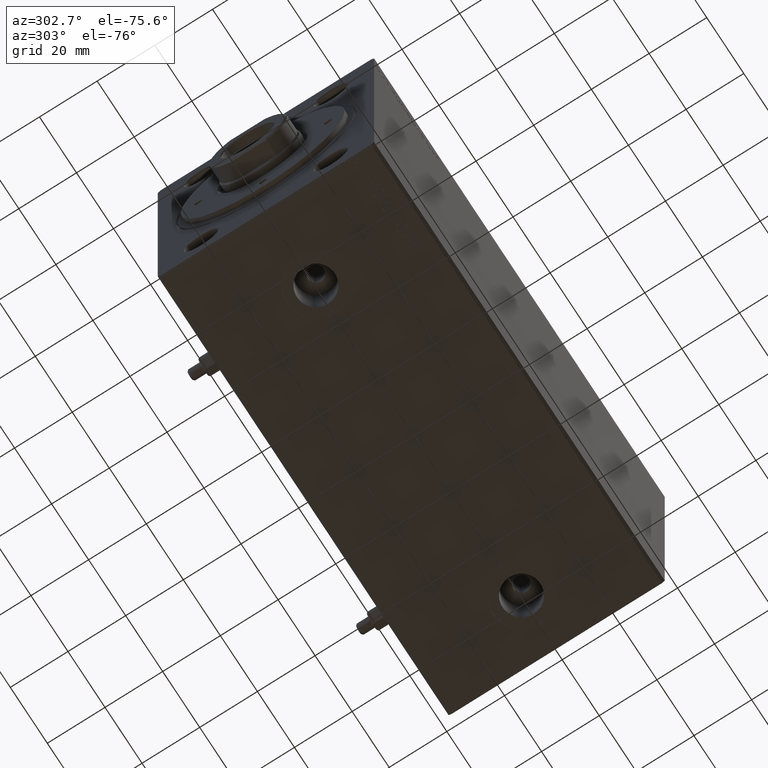
[diagram: clean part render]
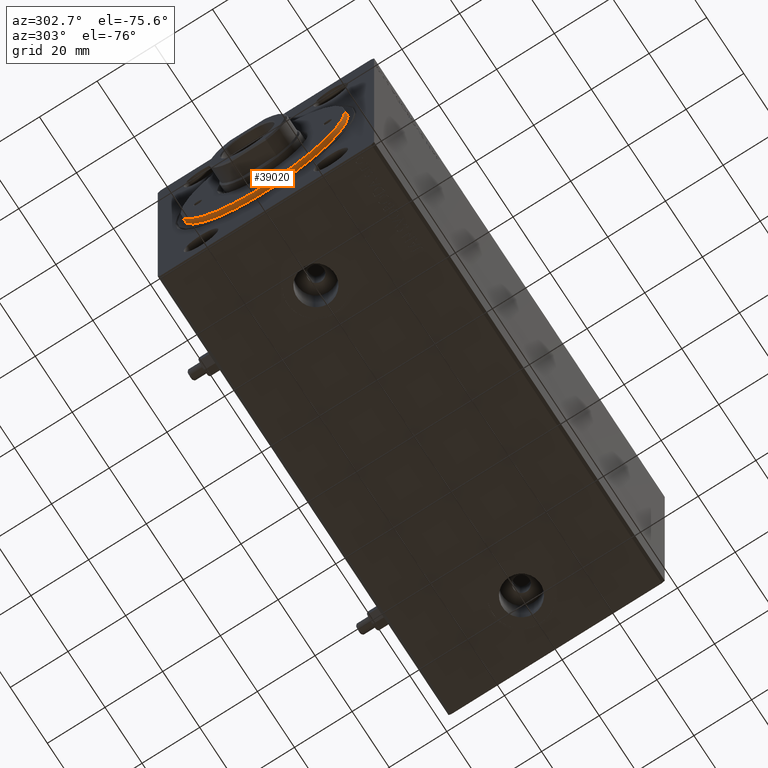
[diagram: same view with one face highlighted and labeled with its STEP entity id]
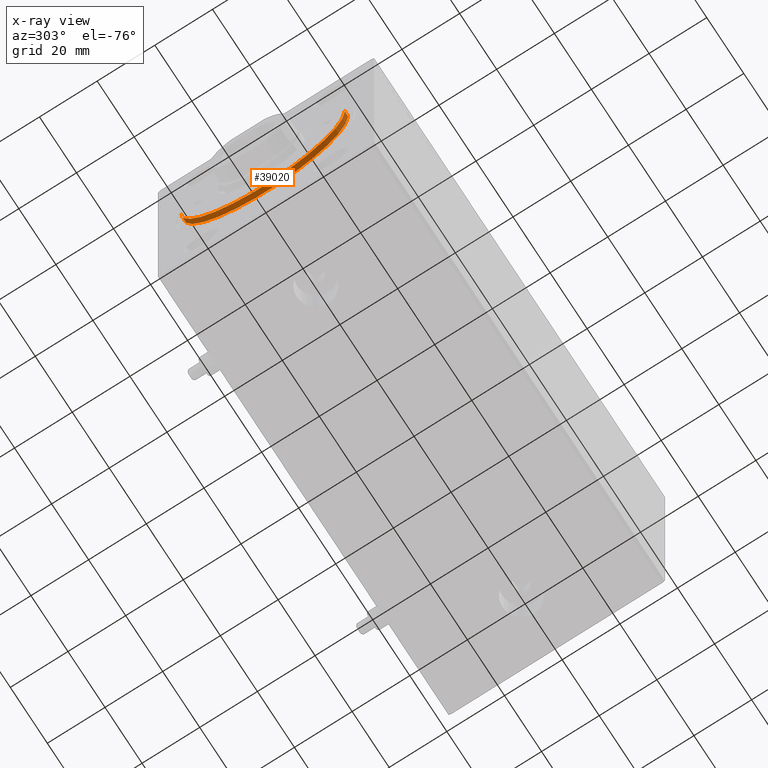
[diagram: x-ray of the same camera — body ghosted, the highlighted face saturated]
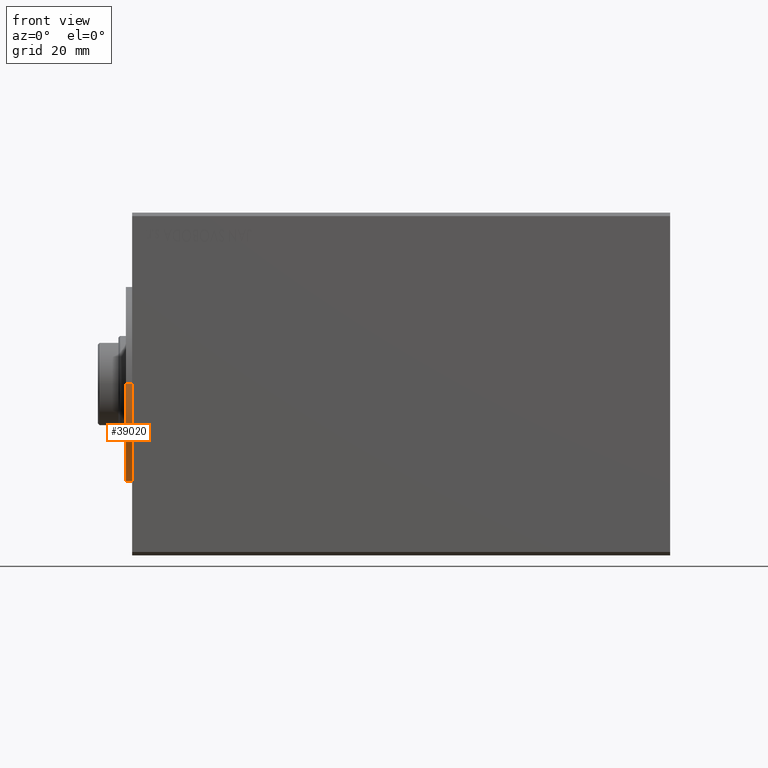
[diagram: same view with one face highlighted and labeled with its STEP entity id]
A machine part, auxiliary view. The second image highlights one B-rep face of the part: STEP entity #39020.
The next image is the same camera in x-ray: the body ghosted, the highlighted face saturated — about 0% of this face is hidden behind the body in this view.
A second angle (front view) of the same face is appended — the face is thin or edge-on in the first view.
In plain terms, the highlighted cylindrical surface (partial cylindrical patch) has radius 28.5 mm, axis along (1, -0, 0).
Its self-contained STEP definition (entity closure, byte-faithful):
#453 = ORIENTED_EDGE ( 'NONE', *, *, #35933, .T. ) ;
#787 = CARTESIAN_POINT ( 'NONE',  ( 28.50000000000000000, 3.490243377569956456E-15, 8.199999999999999289 ) ) ;
#1258 = AXIS2_PLACEMENT_3D ( 'NONE', #40510, #16369, #8637 ) ;
#2537 = CARTESIAN_POINT ( 'NONE',  ( 0.000000000000000000, 0.000000000000000000, 8.199999999999999289 ) ) ;
#4314 = CARTESIAN_POINT ( 'NONE',  ( -28.50000000000000000, 0.000000000000000000, 9.999999999999998224 ) ) ;
#5012 = DIRECTION ( 'NONE',  ( -0.000000000000000000, -0.000000000000000000, -1.000000000000000000 ) ) ;
#8637 = DIRECTION ( 'NONE',  ( 1.000000000000000000, 0.000000000000000000, 0.000000000000000000 ) ) ;
#9977 = CIRCLE ( 'NONE', #1258, 28.50000000000000000 ) ;
#10047 = DIRECTION ( 'NONE',  ( 1.000000000000000000, 0.000000000000000000, 0.000000000000000000 ) ) ;
#12440 = DIRECTION ( 'NONE',  ( -0.000000000000000000, -0.000000000000000000, -1.000000000000000000 ) ) ;
#12578 = VECTOR ( 'NONE', #33204, 1000.000000000000000 ) ;
#12738 = DIRECTION ( 'NONE',  ( -1.000000000000000000, 0.000000000000000000, 0.000000000000000000 ) ) ;
#16369 = DIRECTION ( 'NONE',  ( 0.000000000000000000, 0.000000000000000000, 1.000000000000000000 ) ) ;
#17162 = EDGE_CURVE ( 'NONE', #37045, #37152, #44563, .T. ) ;
#20165 = CARTESIAN_POINT ( 'NONE',  ( 28.50000000000000000, 3.490243377569956456E-15, 9.999999999999998224 ) ) ;
#21910 = VERTEX_POINT ( 'NONE', #787 ) ;
#22641 = AXIS2_PLACEMENT_3D ( 'NONE', #2537, #31836, #10047 ) ;
#25317 = VERTEX_POINT ( 'NONE', #20165 ) ;
#26360 = AXIS2_PLACEMENT_3D ( 'NONE', #32794, #5012, #12738 ) ;
#28258 = ORIENTED_EDGE ( 'NONE', *, *, #29589, .F. ) ;
#28680 = CARTESIAN_POINT ( 'NONE',  ( -28.50000000000000000, 0.000000000000000000, 8.199999999999999289 ) ) ;
#28908 = VECTOR ( 'NONE', #12440, 1000.000000000000000 ) ;
#29589 = EDGE_CURVE ( 'NONE', #25317, #37045, #9977, .T. ) ;
#29935 = EDGE_CURVE ( 'NONE', #25317, #21910, #36802, .T. ) ;
#31836 = DIRECTION ( 'NONE',  ( 0.000000000000000000, 0.000000000000000000, 1.000000000000000000 ) ) ;
#32794 = CARTESIAN_POINT ( 'NONE',  ( 0.000000000000000000, 0.000000000000000000, 9.999999999999998224 ) ) ;
#33204 = DIRECTION ( 'NONE',  ( -0.000000000000000000, -0.000000000000000000, -1.000000000000000000 ) ) ;
#33465 = FACE_OUTER_BOUND ( 'NONE', #41697, .T. ) ;
#35933 = EDGE_CURVE ( 'NONE', #21910, #37152, #40701, .T. ) ;
#36802 = LINE ( 'NONE', #42973, #28908 ) ;
#37045 = VERTEX_POINT ( 'NONE', #4314 ) ;
#37152 = VERTEX_POINT ( 'NONE', #28680 ) ;
#38534 = ORIENTED_EDGE ( 'NONE', *, *, #17162, .F. ) ;
#39020 = ADVANCED_FACE ( 'NONE', ( #33465 ), #43041, .T. ) ;
#40040 = CARTESIAN_POINT ( 'NONE',  ( -28.50000000000000000, 0.000000000000000000, 9.999999999999998224 ) ) ;
#40510 = CARTESIAN_POINT ( 'NONE',  ( 0.000000000000000000, 0.000000000000000000, 9.999999999999998224 ) ) ;
#40701 = CIRCLE ( 'NONE', #22641, 28.50000000000000000 ) ;
#41697 = EDGE_LOOP ( 'NONE', ( #28258, #43573, #453, #38534 ) ) ;
#42973 = CARTESIAN_POINT ( 'NONE',  ( 28.50000000000000000, 3.490243377569956456E-15, 9.999999999999998224 ) ) ;
#43041 = CYLINDRICAL_SURFACE ( 'NONE', #26360, 28.50000000000000000 ) ;
#43573 = ORIENTED_EDGE ( 'NONE', *, *, #29935, .T. ) ;
#44563 = LINE ( 'NONE', #40040, #12578 ) ;